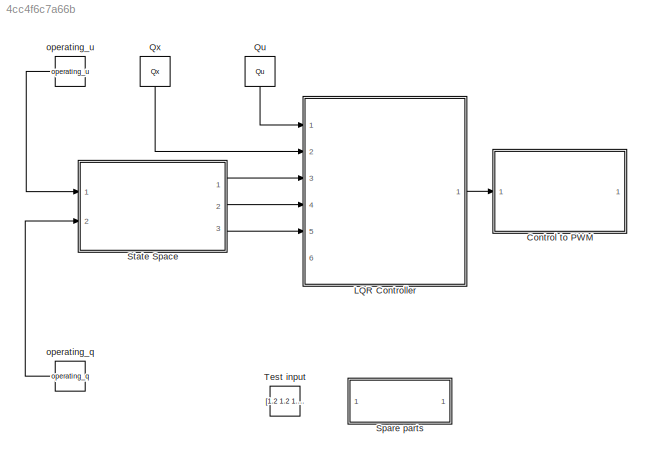
MODEL slx_4cc4f6c7a66b
KIND model
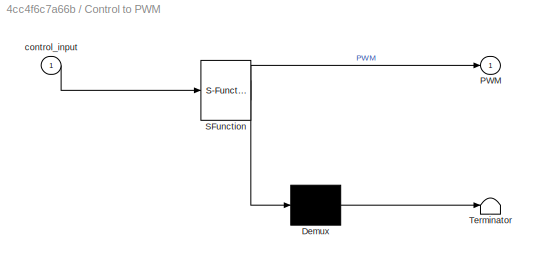
BLOCK [SubSystem] Control to PWM
  ErrorFcn = Stateflow.Translate.translate
  PermitHierarchicalResolution = ExplicitOnly
  Ports = [1, 1]
  RequestExecContextInheritance = off
  SFBlockType = MATLAB Function
  TreatAsAtomicUnit = on
BLOCK [Demux] Control to PWM/ Demux 
  Outputs = 1
  Ports = [1, 1]
BLOCK [S-Function] Control to PWM/ SFunction 
  EnableBusSupport = on
  FunctionName = sf_sfun
  PortCounts = [1 2]
  Ports = [1, 2]
  Tag = Stateflow S-Function controller_block 4
BLOCK [Terminator] Control to PWM/ Terminator 
BLOCK [Outport] Control to PWM/PWM
  IconDisplay = Port number
BLOCK [Inport] Control to PWM/control_input
  IconDisplay = Port number
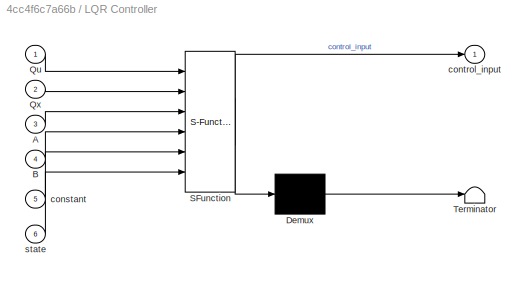
BLOCK [SubSystem] LQR Controller
  ErrorFcn = Stateflow.Translate.translate
  PermitHierarchicalResolution = ExplicitOnly
  Ports = [6, 1]
  RequestExecContextInheritance = off
  SFBlockType = MATLAB Function
  TreatAsAtomicUnit = on
BLOCK [Demux] LQR Controller/ Demux 
  Outputs = 1
  Ports = [1, 1]
BLOCK [S-Function] LQR Controller/ SFunction 
  EnableBusSupport = on
  FunctionName = sf_sfun
  PortCounts = [6 2]
  Ports = [6, 2]
  Tag = Stateflow S-Function controller_block 3
BLOCK [Terminator] LQR Controller/ Terminator 
BLOCK [Inport] LQR Controller/A
  IconDisplay = Port number
  Port = 3
BLOCK [Inport] LQR Controller/B
  IconDisplay = Port number
  Port = 4
BLOCK [Inport] LQR Controller/Qu
  IconDisplay = Port number
BLOCK [Inport] LQR Controller/Qx
  IconDisplay = Port number
  Port = 2
BLOCK [Inport] LQR Controller/constant
  IconDisplay = Port number
  Port = 5
BLOCK [Outport] LQR Controller/control_input
  IconDisplay = Port number
BLOCK [Inport] LQR Controller/state
  IconDisplay = Port number
  Port = 6
BLOCK [Constant] Qu
  Value = Qu
BLOCK [Constant] Qx
  Value = Qx
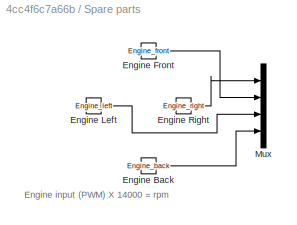
BLOCK [SubSystem] Spare parts
  Ports = []
  RequestExecContextInheritance = off
BLOCK [Constant] Spare parts/Engine Back
  Value = Engine_back
BLOCK [Constant] Spare parts/Engine Front
  Value = Engine_front
BLOCK [Constant] Spare parts/Engine Left
  Value = Engine_left
BLOCK [Constant] Spare parts/Engine Right
  Value = Engine_right
BLOCK [Mux] Spare parts/Mux
  DisplayOption = bar
  Ports = [4, 1]
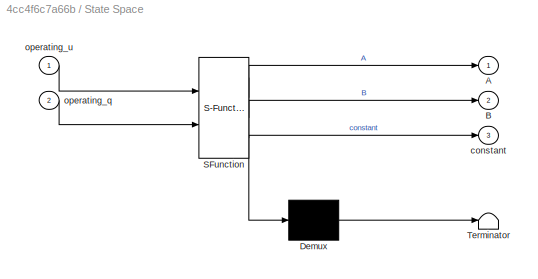
BLOCK [SubSystem] State Space
  ErrorFcn = Stateflow.Translate.translate
  PermitHierarchicalResolution = ExplicitOnly
  Ports = [2, 3]
  RequestExecContextInheritance = off
  SFBlockType = MATLAB Function
  TreatAsAtomicUnit = on
BLOCK [Demux] State Space/ Demux 
  Outputs = 1
  Ports = [1, 1]
BLOCK [S-Function] State Space/ SFunction 
  EnableBusSupport = on
  FunctionName = sf_sfun
  PortCounts = [2 4]
  Ports = [2, 4]
  Tag = Stateflow S-Function controller_block 1
BLOCK [Terminator] State Space/ Terminator 
BLOCK [Outport] State Space/A
  IconDisplay = Port number
BLOCK [Outport] State Space/B
  IconDisplay = Port number
  Port = 2
BLOCK [Outport] State Space/constant
  IconDisplay = Port number
  Port = 3
BLOCK [Inport] State Space/operating_q
  IconDisplay = Port number
  Port = 2
BLOCK [Inport] State Space/operating_u
  IconDisplay = Port number
BLOCK [Constant] Test input
  Value = [1.2 1.2 1.2 1.2]'
BLOCK [Constant] operating_q
  Value = operating_q
BLOCK [Constant] operating_u
  Value = operating_u
ANNOTATION Spare parts: Engine input (PWM) X 14000 = rpm
LINE LQR Controller:1 -> Control to PWM:1
LINE Qu:1 -> LQR Controller:1
LINE Qx:1 -> LQR Controller:2
LINE Spare parts/Engine Back:1 -> Spare parts/Mux:4
LINE Spare parts/Engine Front:1 -> Spare parts/Mux:2
LINE Spare parts/Engine Left:1 -> Spare parts/Mux:3
LINE Spare parts/Engine Right:1 -> Spare parts/Mux:1
LINE State Space:1 -> LQR Controller:3
LINE State Space:2 -> LQR Controller:4
LINE State Space:3 -> LQR Controller:5
LINE operating_q:1 -> State Space:2
LINE operating_u:1 -> State Space:1
CHART State Space states=1 transitions=1
  STATE_LABEL 'eML_blk_kernel()'
  STATE_LABEL 'SCRIPT:\nfunction [A, B, constant] = fcn(operating_u, operating_q)\n% function [A, B, constant] = fcn(operating_u, operating_q)\n% function [A, B, constant] = fcn(operating_u, operating_q)\n% \n% Ixx = 2.09*10^(-05);\n% Iyy = 2.09*10^(-05);\n% Izz = 3.81*10^(-05);\n% d = 0.046;\n% m = 0.027;\n% g = 9.8;\n% \n% theta_0 = operating_q(1);\n% phi_0 = operating_q(2);\n% psi_0 = operating_q(3);\n% theta_dot_0 = operat...<+2328ch>'
CHART LQR Controller states=1 transitions=1
  STATE_LABEL 'eML_blk_kernel()'
  STATE_LABEL "SCRIPT:\nfunction control_input = fcn(Qu, Qx, A, B, constant, state)\n% function control_input = fcn(Qu, Qx, A, B, constant, state)\n% \n% coder.extrinsic('lqr');\n% Klqr = lqr(A,B,Qx,Qu);\n% \n% control_input = -Klqr*(state + A\\constant);\n% \n% control_input = -Klqr*(state);\n% control_input = 0;A\n% \n% end"
CHART Control to PWM states=1 transitions=1
  STATE_LABEL 'eML_blk_kernel()'
  STATE_LABEL 'SCRIPT:\nfunction PWM = fcn(control_input)\n% function PWM = fcn(control_input)\n% function PWM  = fcn(control_input)\n% % Provides PWM signal for perticular control input\n% \n% Ct = 1.0942e-07;\n% C1 = 0.25*(Ct)*9.8/1000;                                                    % grams to newton                           \n% Cq = 1*(10^(-9))*(60/(2*pi))^2;                                             % Cq in r...<+406ch>'
